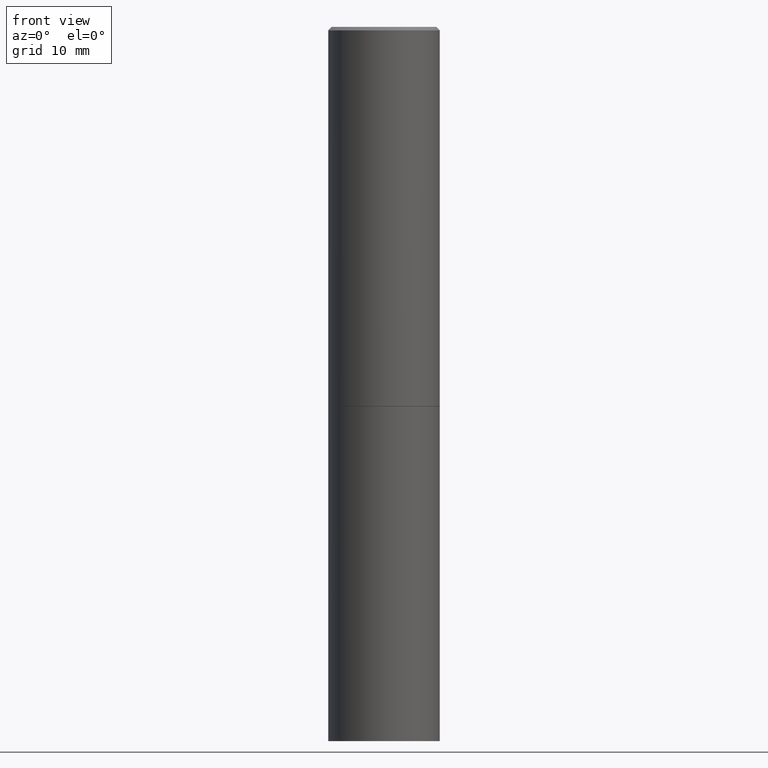
[diagram: clean part render]
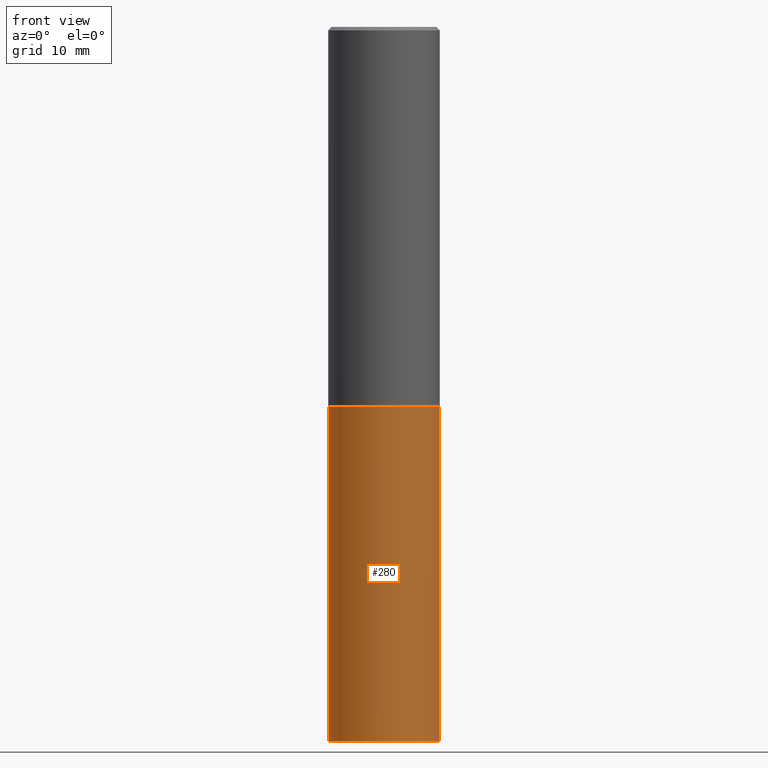
[diagram: same view with one face highlighted and labeled with its STEP entity id]
A machine part, front view. The second image highlights one B-rep face of the part: STEP entity #280.
In plain terms, the highlighted cylindrical surface (partial cylindrical patch) has radius 7.9375 mm, axis along (-0, 0, 1).
Its self-contained STEP definition (entity closure, byte-faithful):
#3 = VERTEX_POINT ( 'NONE', #190 ) ;
#7 = DIRECTION ( 'NONE',  ( -2.445468806185136597E-29, 3.491481338843145583E-15, 1.000000000000000000 ) ) ;
#10 = AXIS2_PLACEMENT_3D ( 'NONE', #202, #313, #173 ) ;
#16 = CARTESIAN_POINT ( 'NONE',  ( 9.781875224740546387E-29, -1.396592535537258233E-14, -4.000000000000000000 ) ) ;
#21 = ORIENTED_EDGE ( 'NONE', *, *, #231, .T. ) ;
#29 = DIRECTION ( 'NONE',  ( -2.445468806185136877E-29, 3.491481338843145188E-15, 1.000000000000000000 ) ) ;
#42 = VERTEX_POINT ( 'NONE', #53 ) ;
#53 = CARTESIAN_POINT ( 'NONE',  ( -0.3125000000000000000, -8.472215550956819896E-15, -4.000000000000000000 ) ) ;
#59 = CARTESIAN_POINT ( 'NONE',  ( 0.3125000000000000000, -1.614810119214954068E-14, -4.000000000000000000 ) ) ;
#60 = FACE_OUTER_BOUND ( 'NONE', #75, .T. ) ;
#75 = EDGE_LOOP ( 'NONE', ( #357, #21, #217, #215 ) ) ;
#85 = EDGE_CURVE ( 'NONE', #99, #3, #252, .T. ) ;
#99 = VERTEX_POINT ( 'NONE', #249 ) ;
#109 = VERTEX_POINT ( 'NONE', #59 ) ;
#111 = CARTESIAN_POINT ( 'NONE',  ( -0.3125000000000000000, 2.220446049250313081E-15, -1.537167215704658232E-29 ) ) ;
#125 = VECTOR ( 'NONE', #335, 39.37007874015748143 ) ;
#130 = DIRECTION ( 'NONE',  ( 1.000000000000000000, -6.982962677686269077E-15, 0.000000000000000000 ) ) ;
#143 = LINE ( 'NONE', #276, #325 ) ;
#146 = AXIS2_PLACEMENT_3D ( 'NONE', #307, #167, #336 ) ;
#148 = EDGE_CURVE ( 'NONE', #109, #3, #143, .T. ) ;
#149 = CYLINDRICAL_SURFACE ( 'NONE', #10, 0.3125000000000000000 ) ;
#167 = DIRECTION ( 'NONE',  ( -2.445468806185136597E-29, 3.491481338843145583E-15, 1.000000000000000000 ) ) ;
#173 = DIRECTION ( 'NONE',  ( 1.000000000000000000, -6.982962677686266711E-15, 4.876176775795936353E-29 ) ) ;
#189 = CIRCLE ( 'NONE', #236, 0.3125000000000000000 ) ;
#190 = CARTESIAN_POINT ( 'NONE',  ( 0.3125000000000000000, -9.601573681818640393E-15, -2.124999999999999556 ) ) ;
#202 = CARTESIAN_POINT ( 'NONE',  ( 0.000000000000000000, 0.000000000000000000, 0.000000000000000000 ) ) ;
#215 = ORIENTED_EDGE ( 'NONE', *, *, #85, .F. ) ;
#217 = ORIENTED_EDGE ( 'NONE', *, *, #148, .T. ) ;
#231 = EDGE_CURVE ( 'NONE', #42, #109, #189, .T. ) ;
#236 = AXIS2_PLACEMENT_3D ( 'NONE', #16, #7, #130 ) ;
#249 = CARTESIAN_POINT ( 'NONE',  ( -0.3125000000000000000, -8.472215550956819896E-15, -2.124999999999999556 ) ) ;
#252 = CIRCLE ( 'NONE', #146, 0.3125000000000000000 ) ;
#276 = CARTESIAN_POINT ( 'NONE',  ( 0.3125000000000000000, -2.182175836776958347E-15, 1.523805242436230075E-29 ) ) ;
#280 = ADVANCED_FACE ( 'NONE', ( #60 ), #149, .T. ) ;
#283 = EDGE_CURVE ( 'NONE', #42, #99, #284, .T. ) ;
#284 = LINE ( 'NONE', #111, #125 ) ;
#307 = CARTESIAN_POINT ( 'NONE',  ( 5.196621213143414147E-29, -7.419397845041682046E-15, -2.124999999999999556 ) ) ;
#313 = DIRECTION ( 'NONE',  ( -2.445468806185136597E-29, 3.491481338843145583E-15, 1.000000000000000000 ) ) ;
#325 = VECTOR ( 'NONE', #29, 39.37007874015748143 ) ;
#335 = DIRECTION ( 'NONE',  ( -2.445468806185136877E-29, 3.491481338843145188E-15, 1.000000000000000000 ) ) ;
#336 = DIRECTION ( 'NONE',  ( 1.000000000000000000, -6.982962677686265133E-15, 0.000000000000000000 ) ) ;
#357 = ORIENTED_EDGE ( 'NONE', *, *, #283, .F. ) ;